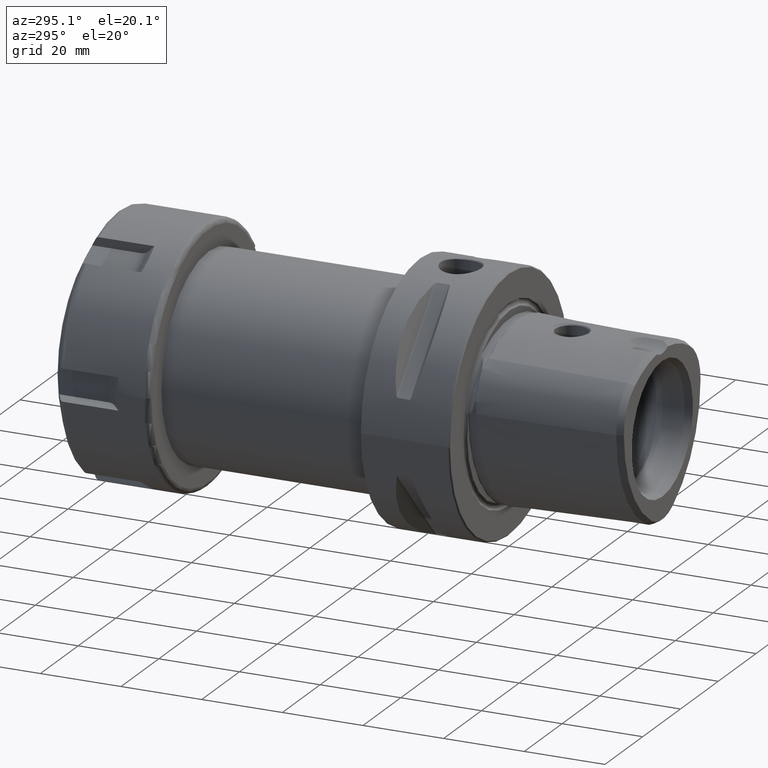
[diagram: clean part render]
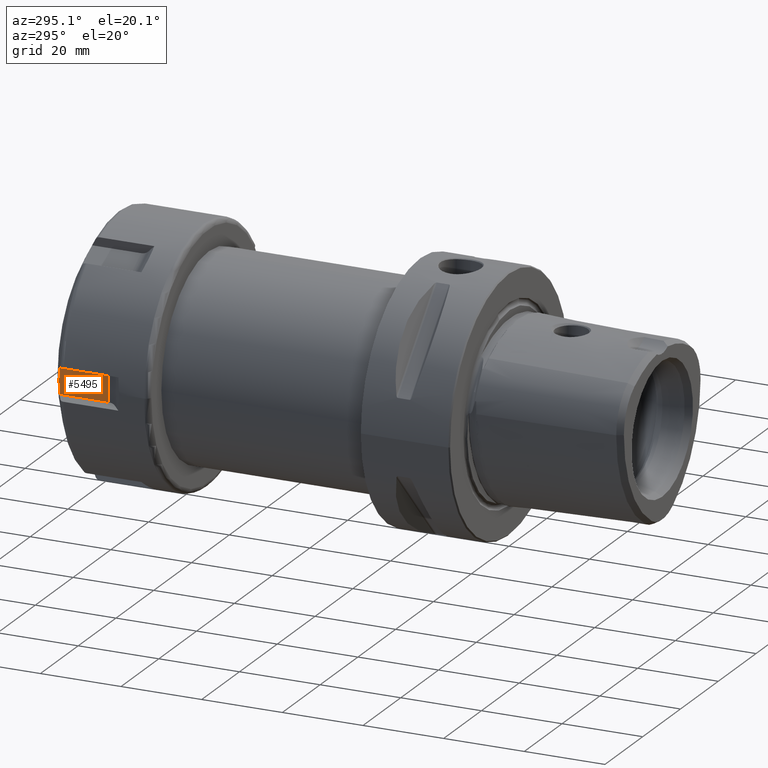
[diagram: same view with one face highlighted and labeled with its STEP entity id]
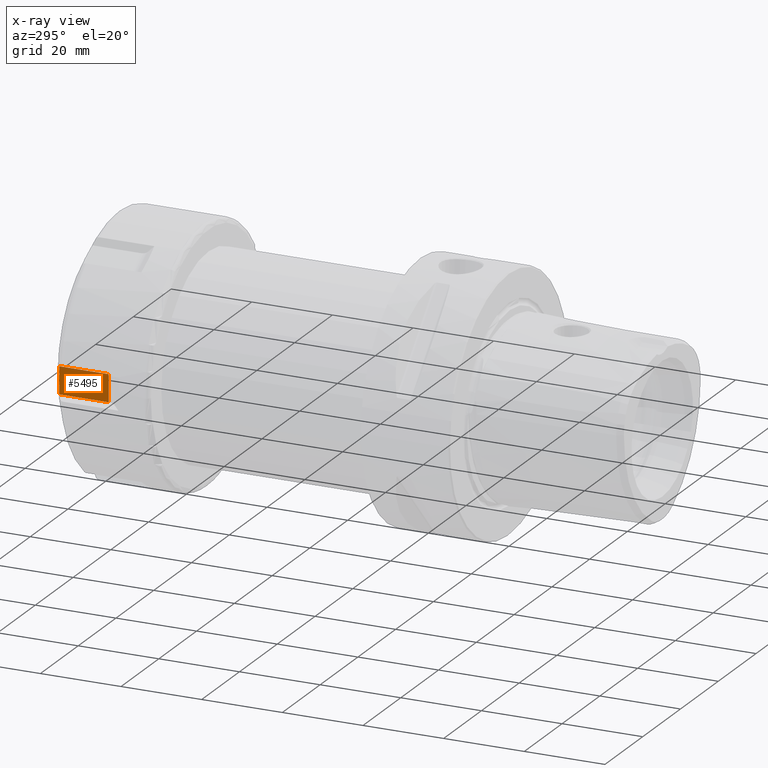
[diagram: x-ray of the same camera — body ghosted, the highlighted face saturated]
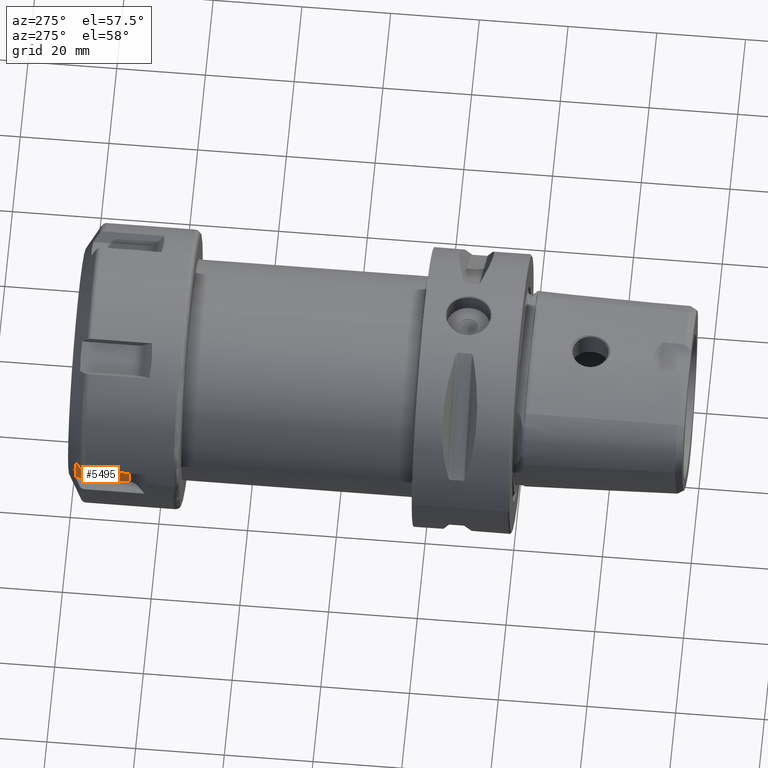
[diagram: same view with one face highlighted and labeled with its STEP entity id]
A machine part, auxiliary view. The second image highlights one B-rep face of the part: STEP entity #5495.
The next image is the same camera in x-ray: the body ghosted, the highlighted face saturated — about 0% of this face is hidden behind the body in this view.
A second angle (auxiliary view) of the same face is appended — the face is thin or edge-on in the first view.
In plain terms, the highlighted planar face has unit normal (1, 0, 0).
Its self-contained STEP definition (entity closure, byte-faithful):
#4189=CARTESIAN_POINT('',(2.351130782476E1,2.874999999997E1,-3.35E0));
#4190=CARTESIAN_POINT('',(2.353617695757E1,2.874999999997E1,-2.977828809184E0));
#4191=CARTESIAN_POINT('',(2.357773662637E1,2.874999999997E1,-2.233458033279E0));
#4192=CARTESIAN_POINT('',(2.361525848375E1,2.874999999997E1,-1.116817767542E0));
#4193=CARTESIAN_POINT('',(2.362361162515E1,2.874999999997E1,
-3.722872262064E-1));
#4194=CARTESIAN_POINT('',(2.362361162515E1,2.874999999997E1,0.E0));
#4527=CARTESIAN_POINT('',(2.351130782476E1,2.874999999997E1,3.35E0));
#4533=CARTESIAN_POINT('',(2.362361162515E1,2.874999999997E1,0.E0));
#4534=CARTESIAN_POINT('',(2.362361162515E1,2.874999999997E1,3.723033754199E-1));
#4535=CARTESIAN_POINT('',(2.361525781864E1,2.874999999997E1,1.116855572672E0));
#4536=CARTESIAN_POINT('',(2.357773435590E1,2.874999999997E1,2.233506677949E0));
#4537=CARTESIAN_POINT('',(2.353617556265E1,2.874999999997E1,2.977849684408E0));
#4538=CARTESIAN_POINT('',(2.351130782476E1,2.874999999997E1,3.35E0));
#4701=CARTESIAN_POINT('',(1.135837661841E1,2.874999999997E1,-3.35E0));
#4707=DIRECTION('',(-1.E0,0.E0,0.E0));
#4708=VECTOR('',#4707,1.215293120635E1);
#4709=CARTESIAN_POINT('',(2.351130782476E1,2.874999999997E1,-3.35E0));
#4710=LINE('',#4709,#4708);
#4711=DIRECTION('',(0.E0,0.E0,-1.E0));
#4712=VECTOR('',#4711,6.7E0);
#4713=CARTESIAN_POINT('',(1.135837661841E1,2.874999999997E1,3.35E0));
#4714=LINE('',#4713,#4712);
#4715=DIRECTION('',(-1.E0,0.E0,0.E0));
#4716=VECTOR('',#4715,1.215293120635E1);
#4717=CARTESIAN_POINT('',(2.351130782476E1,2.874999999997E1,3.35E0));
#4718=LINE('',#4717,#4716);
#4835=VERTEX_POINT('',#4527);
#4837=VERTEX_POINT('',#4533);
#4838=VERTEX_POINT('',#4189);
#4853=VERTEX_POINT('',#4701);
#4854=CARTESIAN_POINT('',(1.135837661841E1,2.874999999997E1,3.35E0));
#4855=VERTEX_POINT('',#4854);
#5482=CARTESIAN_POINT('',(2.55E1,2.874999999997E1,3.35E0));
#5483=DIRECTION('',(0.E0,-1.E0,0.E0));
#5484=DIRECTION('',(0.E0,0.E0,-1.E0));
#5485=AXIS2_PLACEMENT_3D('',#5482,#5483,#5484);
#5486=PLANE('',#5485);
#5487=ORIENTED_EDGE('',*,*,#5459,.T.);
#5488=ORIENTED_EDGE('',*,*,#5477,.F.);
#5489=ORIENTED_EDGE('',*,*,#4977,.T.);
#5490=ORIENTED_EDGE('',*,*,#5252,.T.);
#5492=ORIENTED_EDGE('',*,*,#5491,.T.);
#5493=EDGE_LOOP('',(#5487,#5488,#5489,#5490,#5492));
#5494=FACE_OUTER_BOUND('',#5493,.F.);
#5495=ADVANCED_FACE('',(#5494),#5486,.F.);
#4195=B_SPLINE_CURVE_WITH_KNOTS('',3,(#4189,#4190,#4191,#4192,#4193,#4194),
.UNSPECIFIED.,.F.,.F.,(4,1,1,4),(0.E0,3.333333333333E-1,6.666666666667E-1,1.E0),
.UNSPECIFIED.);
#4539=B_SPLINE_CURVE_WITH_KNOTS('',3,(#4533,#4534,#4535,#4536,#4537,#4538),
.UNSPECIFIED.,.F.,.F.,(4,1,1,4),(0.E0,3.333333333333E-1,6.666666666667E-1,1.E0),
.UNSPECIFIED.);
#4977=EDGE_CURVE('',#4838,#4837,#4195,.T.);
#5252=EDGE_CURVE('',#4837,#4835,#4539,.T.);
#5459=EDGE_CURVE('',#4855,#4853,#4714,.T.);
#5477=EDGE_CURVE('',#4838,#4853,#4710,.T.);
#5491=EDGE_CURVE('',#4835,#4855,#4718,.T.);